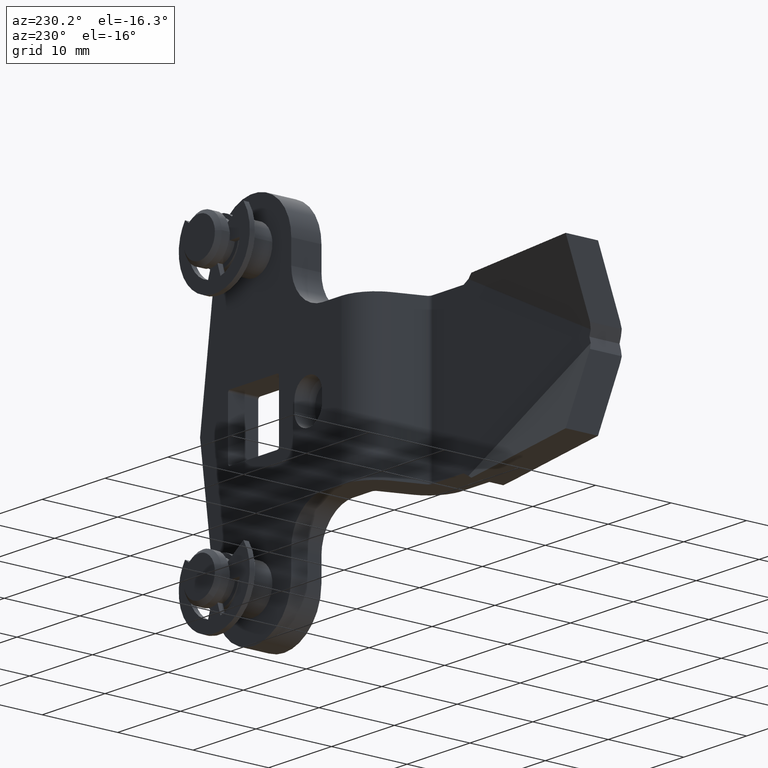
[diagram: clean part render]
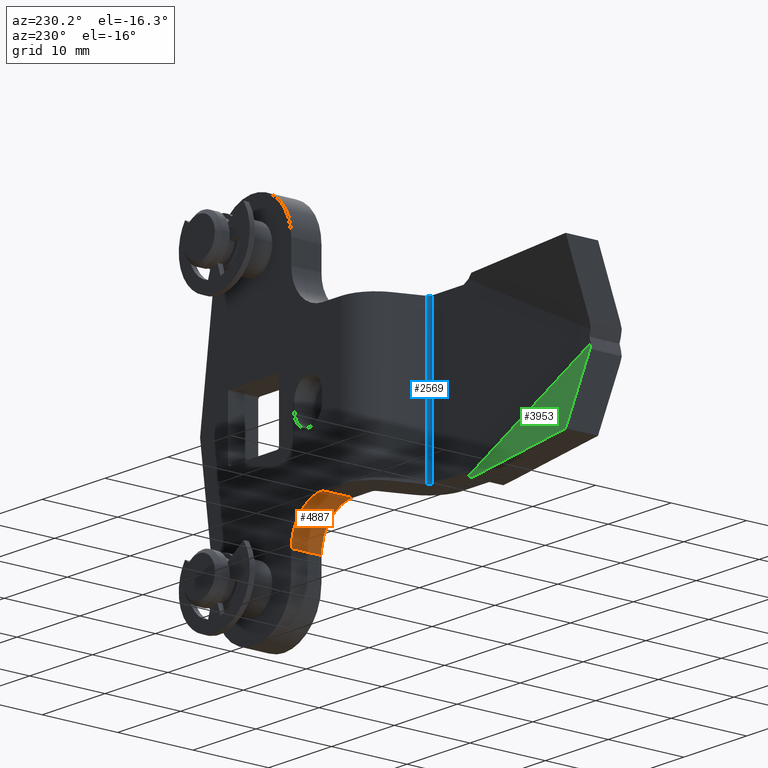
[diagram: same view with three faces highlighted in distinct colors, each labeled with its STEP entity id]
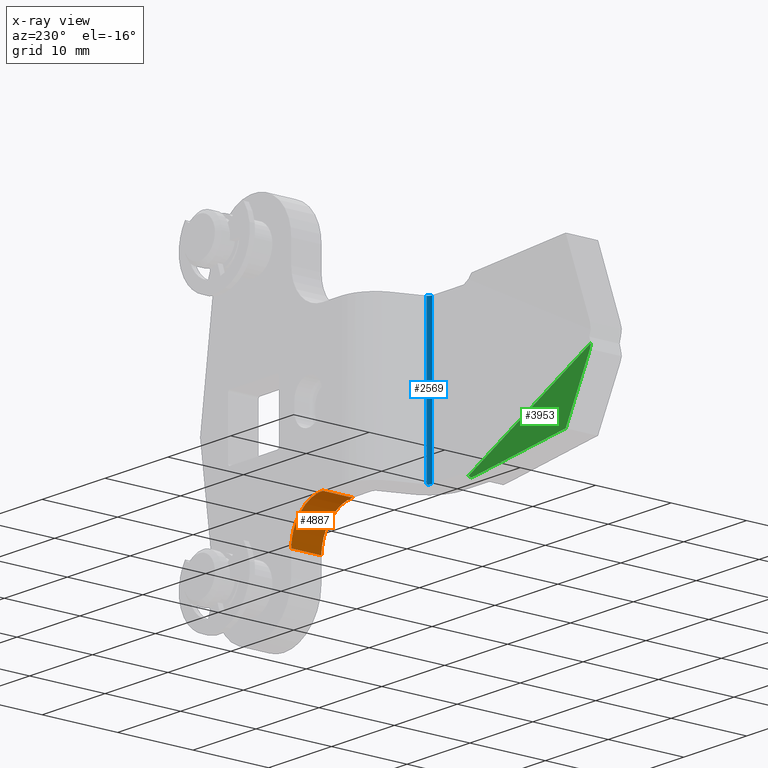
[diagram: x-ray of the same camera — body ghosted, the three highlighted faces saturated]
A machine part, auxiliary view with three faces highlighted in distinct colors.
The next image is the same camera in x-ray (body ghosted, the three faces saturated) — at least one of them is partly hidden behind the body in this view.
Their STEP definitions:

[orange] entity #4887 — the highlighted face is a freeform B-spline surface patch.
#4812=CARTESIAN_POINT('',(-6.000000284984710,3.000000142492245,-15.000000712461750));
#4813=VERTEX_POINT('',#4812);
#4819=CARTESIAN_POINT('',(-6.000000284984729,7.0,-15.000000712461750));
#4820=VERTEX_POINT('',#4819);
#4821=CARTESIAN_POINT('',(-6.000000284984710,3.000000142492245,-15.000000712461750));
#4822=CARTESIAN_POINT('',(-6.000000284984729,7.0,-15.000000712461750));
#4823=QUASI_UNIFORM_CURVE('',1,(#4821,#4822),.UNSPECIFIED.,.F.,.U.);
#4824=EDGE_CURVE('',#4813,#4820,#4823,.T.);
#4835=CARTESIAN_POINT('',(-6.001713660188328,2.900000146054551,-15.130885460217810));
#4836=CARTESIAN_POINT('',(-6.001713660188328,7.102499996348637,-15.130885460217810));
#4837=CARTESIAN_POINT('',(-5.858878022301828,2.900000146054551,-9.676212516624787));
#4838=CARTESIAN_POINT('',(-5.858878022301828,7.102499996348637,-9.676212516624787));
#4839=CARTESIAN_POINT('',(-11.305243234644530,2.900000146054551,-10.009326483308101));
#4840=CARTESIAN_POINT('',(-11.305243234644530,7.102499996348637,-10.009326483308101));
#4848=(BOUNDED_SURFACE()B_SPLINE_SURFACE(1,2,((#4835,#4837,#4839),(#4836,#4838,#4840)),.UNSPECIFIED.,.F.,.F.,.U.)B_SPLINE_SURFACE_WITH_KNOTS((2,2),(3,3),(0.0,4.202499850294087),(0.0,8.800211035824267),.UNSPECIFIED.)GEOMETRIC_REPRESENTATION_ITEM()RATIONAL_B_SPLINE_SURFACE(((1.0,0.675590207615660,1.0),(1.0,0.675590207615660,1.0)))REPRESENTATION_ITEM('')SURFACE());
#4849=ORIENTED_EDGE('',*,*,#4824,.F.);
#4850=CARTESIAN_POINT('',(-11.000000522472000,3.000000142492245,-10.000000474974479));
#4851=VERTEX_POINT('',#4850);
#4852=CARTESIAN_POINT('',(-6.000000284984730,3.000000142492245,-15.000000712461750));
#4853=CARTESIAN_POINT('',(-6.000000284984730,3.000000142492245,-10.000000474974478));
#4854=CARTESIAN_POINT('',(-11.000000522472000,3.000000142492245,-10.000000474974479));
#4862=(BOUNDED_CURVE()B_SPLINE_CURVE(2,(#4852,#4853,#4854),.UNSPECIFIED.,.F.,.U.)CURVE()GEOMETRIC_REPRESENTATION_ITEM()QUASI_UNIFORM_CURVE()RATIONAL_B_SPLINE_CURVE((1.0,0.707106781186548,1.0))REPRESENTATION_ITEM(''));
#4863=EDGE_CURVE('',#4813,#4851,#4862,.T.);
#4864=ORIENTED_EDGE('',*,*,#4863,.T.);
#4865=CARTESIAN_POINT('',(-11.000000522472000,7.0,-10.000000474974440));
#4866=VERTEX_POINT('',#4865);
#4867=CARTESIAN_POINT('',(-11.000000522472000,3.000000142492245,-10.000000474974479));
#4868=CARTESIAN_POINT('',(-11.000000522472000,7.0,-10.000000474974440));
#4869=QUASI_UNIFORM_CURVE('',1,(#4867,#4868),.UNSPECIFIED.,.F.,.U.);
#4870=EDGE_CURVE('',#4851,#4866,#4869,.T.);
#4871=ORIENTED_EDGE('',*,*,#4870,.T.);
#4872=CARTESIAN_POINT('',(-6.000000284984730,7.0,-15.000000712461750));
#4873=CARTESIAN_POINT('',(-6.000000284984730,6.999999999999999,-10.000000474974478));
#4874=CARTESIAN_POINT('',(-11.000000522472000,7.0,-10.000000474974479));
#4882=(BOUNDED_CURVE()B_SPLINE_CURVE(2,(#4872,#4873,#4874),.UNSPECIFIED.,.F.,.U.)CURVE()GEOMETRIC_REPRESENTATION_ITEM()QUASI_UNIFORM_CURVE()RATIONAL_B_SPLINE_CURVE((1.0,0.707106781186548,1.0))REPRESENTATION_ITEM(''));
#4883=EDGE_CURVE('',#4820,#4866,#4882,.T.);
#4884=ORIENTED_EDGE('',*,*,#4883,.F.);
#4885=EDGE_LOOP('',(#4849,#4864,#4871,#4884));
#4886=FACE_OUTER_BOUND('',#4885,.T.);
#4887=ADVANCED_FACE('',(#4886),#4848,.F.);

[blue] entity #2569 — the highlighted face is a freeform B-spline surface patch.
#2509=CARTESIAN_POINT('',(-19.523142457738690,0.349647100247949,-10.500000498722301));
#2510=CARTESIAN_POINT('',(-19.523142457738690,0.349647100247949,10.512500499318641));
#2511=CARTESIAN_POINT('',(-19.640199164072545,-0.021609341142234,-10.500000498722301));
#2512=CARTESIAN_POINT('',(-19.640199164072545,-0.021609341142234,10.512500499318644));
#2513=CARTESIAN_POINT('',(-20.028824981086768,0.000831517162485,-10.500000498722301));
#2514=CARTESIAN_POINT('',(-20.028824981086768,0.000831517162485,10.512500499318650));
#2522=(BOUNDED_SURFACE()B_SPLINE_SURFACE(1,2,((#2509,#2511,#2513),(#2510,#2512,#2514)),.UNSPECIFIED.,.F.,.F.,.U.)B_SPLINE_SURFACE_WITH_KNOTS((2,2),(3,3),(0.0,21.012500998040949),(0.0,0.983305780504178),.UNSPECIFIED.)GEOMETRIC_REPRESENTATION_ITEM()RATIONAL_B_SPLINE_SURFACE(((1.0,0.786237343998521,0.992862798601403),(1.0,0.786237343998521,0.992862798601403)))REPRESENTATION_ITEM('')SURFACE());
#2523=CARTESIAN_POINT('',(-19.528176349457549,0.334526249034721,10.000000474976179));
#2524=VERTEX_POINT('',#2523);
#2525=CARTESIAN_POINT('',(-20.000000933112801,0.0,10.000000474976179));
#2526=VERTEX_POINT('',#2525);
#2527=CARTESIAN_POINT('',(-19.528176349457549,0.334526249034721,10.000000474976179));
#2528=CARTESIAN_POINT('',(-19.645498157480557,8.500145E-014,10.000000474974499));
#2529=CARTESIAN_POINT('',(-20.000000933112801,0.0,10.000000474976179));
#2537=(BOUNDED_CURVE()B_SPLINE_CURVE(2,(#2527,#2528,#2529),.UNSPECIFIED.,.F.,.U.)CURVE()GEOMETRIC_REPRESENTATION_ITEM()QUASI_UNIFORM_CURVE()RATIONAL_B_SPLINE_CURVE((1.0,0.815765745153205,1.0))REPRESENTATION_ITEM(''));
#2538=EDGE_CURVE('',#2524,#2526,#2537,.T.);
#2539=ORIENTED_EDGE('',*,*,#2538,.F.);
#2540=CARTESIAN_POINT('',(-19.528176349457549,0.334526249034721,-10.000000474972840));
#2541=VERTEX_POINT('',#2540);
#2542=CARTESIAN_POINT('',(-19.528176349457549,0.334526249034721,-10.000000474972840));
#2543=CARTESIAN_POINT('',(-19.528176349457549,0.334526249034721,10.000000474976179));
#2544=QUASI_UNIFORM_CURVE('',1,(#2542,#2543),.UNSPECIFIED.,.F.,.U.);
#2545=EDGE_CURVE('',#2541,#2524,#2544,.T.);
#2546=ORIENTED_EDGE('',*,*,#2545,.F.);
#2547=CARTESIAN_POINT('',(-20.000000933112801,0.0,-10.000000474972840));
#2548=VERTEX_POINT('',#2547);
#2549=CARTESIAN_POINT('',(-20.000000933112801,0.0,-10.000000474972840));
#2550=CARTESIAN_POINT('',(-19.645498157480549,8.500145E-014,-10.000000474974438));
#2551=CARTESIAN_POINT('',(-19.528176349457549,0.334526249034721,-10.000000474972840));
#2559=(BOUNDED_CURVE()B_SPLINE_CURVE(2,(#2549,#2550,#2551),.UNSPECIFIED.,.F.,.U.)CURVE()GEOMETRIC_REPRESENTATION_ITEM()QUASI_UNIFORM_CURVE()RATIONAL_B_SPLINE_CURVE((1.0,0.815765745153206,1.0))REPRESENTATION_ITEM(''));
#2560=EDGE_CURVE('',#2548,#2541,#2559,.T.);
#2561=ORIENTED_EDGE('',*,*,#2560,.F.);
#2562=CARTESIAN_POINT('',(-20.000000933112801,0.0,10.000000474976179));
#2563=CARTESIAN_POINT('',(-20.000000933112801,0.0,-10.000000474972840));
#2564=QUASI_UNIFORM_CURVE('',1,(#2562,#2563),.UNSPECIFIED.,.F.,.U.);
#2565=EDGE_CURVE('',#2526,#2548,#2564,.T.);
#2566=ORIENTED_EDGE('',*,*,#2565,.F.);
#2567=EDGE_LOOP('',(#2539,#2546,#2561,#2566));
#2568=FACE_OUTER_BOUND('',#2567,.T.);
#2569=ADVANCED_FACE('',(#2568),#2522,.F.);

[green] entity #3953 — the highlighted face is a freeform B-spline surface patch.
#3748=CARTESIAN_POINT('',(-26.572005842340950,0.283086553732771,-10.871663324387759));
#3749=VERTEX_POINT('',#3748);
#3763=CARTESIAN_POINT('',(-45.180507131172703,3.286526966020055,-10.361010462533420));
#3764=VERTEX_POINT('',#3763);
#3770=CARTESIAN_POINT('',(-45.180507131172703,3.286526966020055,-10.361010462533420));
#3771=CARTESIAN_POINT('',(-26.572005842340950,0.283086553732771,-10.871663324387759));
#3772=QUASI_UNIFORM_CURVE('',1,(#3770,#3771),.UNSPECIFIED.,.F.,.U.);
#3773=EDGE_CURVE('',#3764,#3749,#3772,.T.);
#3893=CARTESIAN_POINT('',(-45.435833562095198,0.283086553729532,-1.439749464508992));
#3894=VERTEX_POINT('',#3893);
#3900=CARTESIAN_POINT('',(-45.435833562095198,0.283086553729532,-1.439749464508992));
#3901=CARTESIAN_POINT('',(-45.180507131172703,3.286526966020055,-10.361010462533420));
#3902=QUASI_UNIFORM_CURVE('',1,(#3900,#3901),.UNSPECIFIED.,.F.,.U.);
#3903=EDGE_CURVE('',#3894,#3764,#3902,.T.);
#3909=CARTESIAN_POINT('',(-46.144325722656262,3.611979821027294,-10.831975574410400));
#3910=CARTESIAN_POINT('',(-24.781999770189771,0.158429653412433,-11.401690701978779));
#3911=CARTESIAN_POINT('',(-46.439573872717922,0.032456481054327,-0.204074156191059));
#3912=CARTESIAN_POINT('',(-25.077247920251441,-3.421093686560534,-0.773789283759436));
#3913=B_SPLINE_SURFACE_WITH_KNOTS('',1,1,((#3909,#3911),(#3910,#3912)),.UNSPECIFIED.,.F.,.F.,.U.,(2,2),(2,2),(0.0,21.647183516250699),(0.0,11.218397718342620),.UNSPECIFIED.);
#3914=ORIENTED_EDGE('',*,*,#3903,.F.);
#3915=CARTESIAN_POINT('',(-45.219883031086212,0.0,-0.718892141584613));
#3916=VERTEX_POINT('',#3915);
#3917=CARTESIAN_POINT('',(-45.435833562095198,0.283086553729532,-1.439749464508992));
#3918=CARTESIAN_POINT('',(-45.328896569734866,0.141614351860135,-1.079009762802605));
#3919=CARTESIAN_POINT('',(-45.219883031086212,0.0,-0.718892141584613));
#3927=(BOUNDED_CURVE()B_SPLINE_CURVE(2,(#3917,#3918,#3919),.UNSPECIFIED.,.F.,.U.)CURVE()GEOMETRIC_REPRESENTATION_ITEM()QUASI_UNIFORM_CURVE()RATIONAL_B_SPLINE_CURVE((1.0,0.999995850851037,1.0))REPRESENTATION_ITEM(''));
#3928=EDGE_CURVE('',#3894,#3916,#3927,.T.);
#3929=ORIENTED_EDGE('',*,*,#3928,.T.);
#3930=CARTESIAN_POINT('',(-25.778134804813750,0.0,-10.439766254721540));
#3931=VERTEX_POINT('',#3930);
#3932=CARTESIAN_POINT('',(-45.219883031086212,0.0,-0.718892141584613));
#3933=CARTESIAN_POINT('',(-25.778134804813750,0.0,-10.439766254721540));
#3934=QUASI_UNIFORM_CURVE('',1,(#3932,#3933),.UNSPECIFIED.,.F.,.U.);
#3935=EDGE_CURVE('',#3916,#3931,#3934,.T.);
#3936=ORIENTED_EDGE('',*,*,#3935,.T.);
#3937=CARTESIAN_POINT('',(-26.572005842340950,0.283086553732771,-10.871663324387759));
#3938=CARTESIAN_POINT('',(-26.173317030824869,0.142344578830713,-10.658937521161258));
#3939=CARTESIAN_POINT('',(-25.778134804813750,0.0,-10.439766254721540));
#3947=(BOUNDED_CURVE()B_SPLINE_CURVE(2,(#3937,#3938,#3939),.UNSPECIFIED.,.F.,.U.)CURVE()GEOMETRIC_REPRESENTATION_ITEM()QUASI_UNIFORM_CURVE()RATIONAL_B_SPLINE_CURVE((1.0,0.999967042299296,1.0))REPRESENTATION_ITEM(''));
#3948=EDGE_CURVE('',#3749,#3931,#3947,.T.);
#3949=ORIENTED_EDGE('',*,*,#3948,.F.);
#3950=ORIENTED_EDGE('',*,*,#3773,.F.);
#3951=EDGE_LOOP('',(#3914,#3929,#3936,#3949,#3950));
#3952=FACE_OUTER_BOUND('',#3951,.T.);
#3953=ADVANCED_FACE('',(#3952),#3913,.F.);